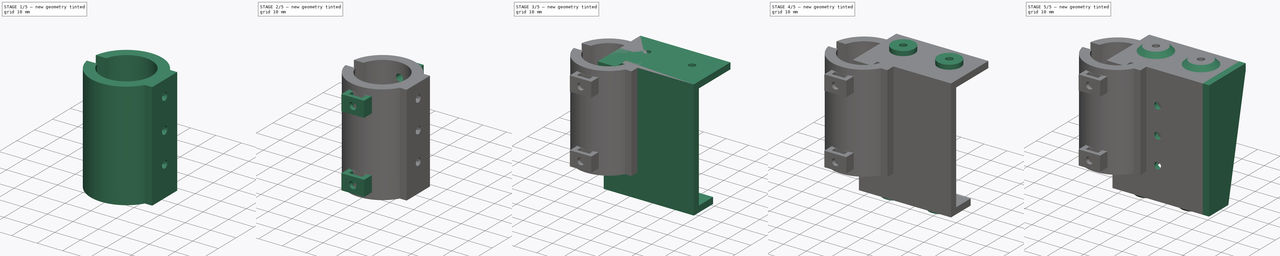
[diagram: build sequence overview — one tinted view per stage of 5, left to right]
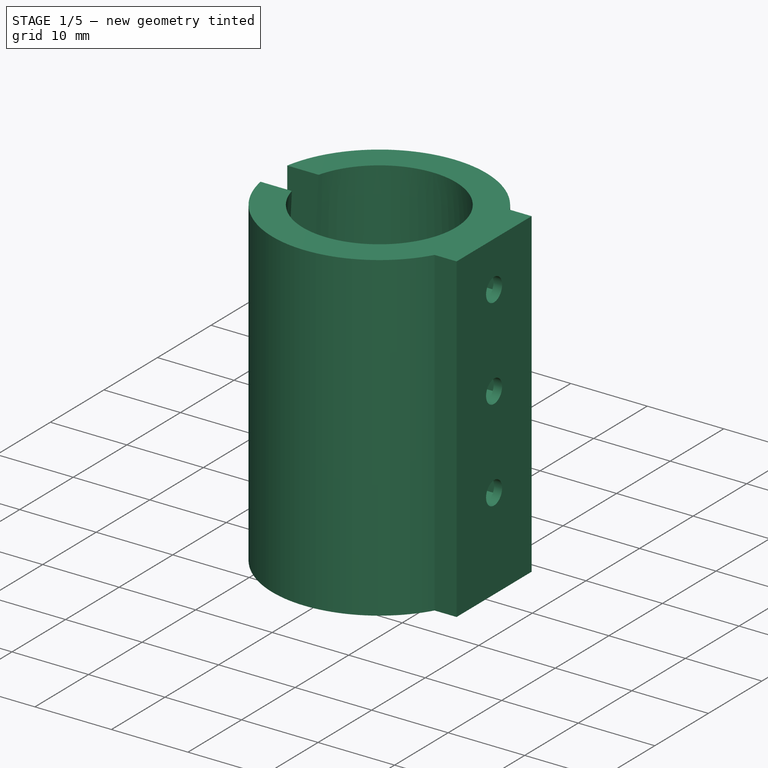
[diagram: stage 1 of 5 — iso view after this stage's code; geometry added in this stage tinted green]
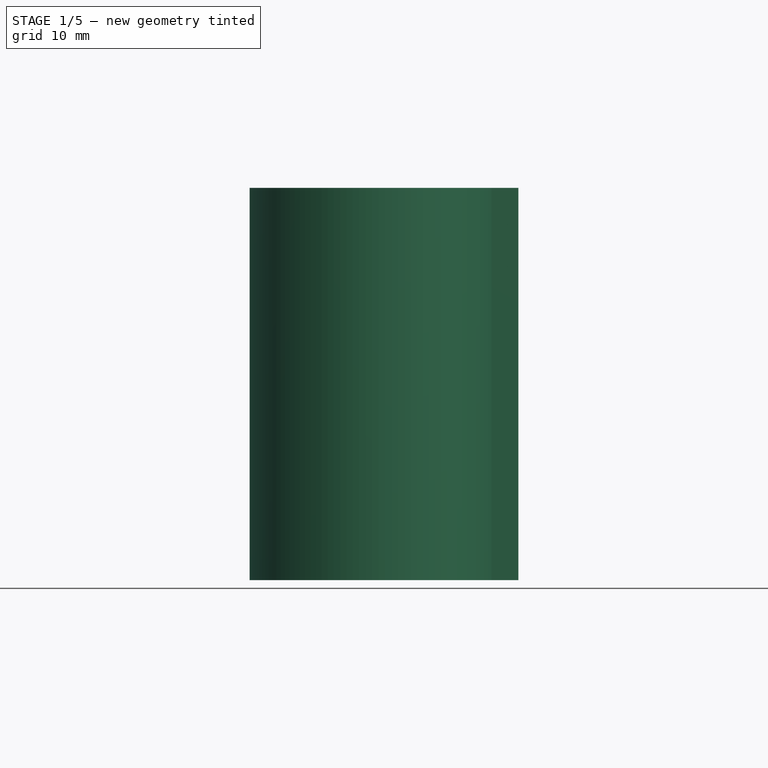
[diagram: stage 1 of 5 — front view after this stage's code; geometry added in this stage tinted green]
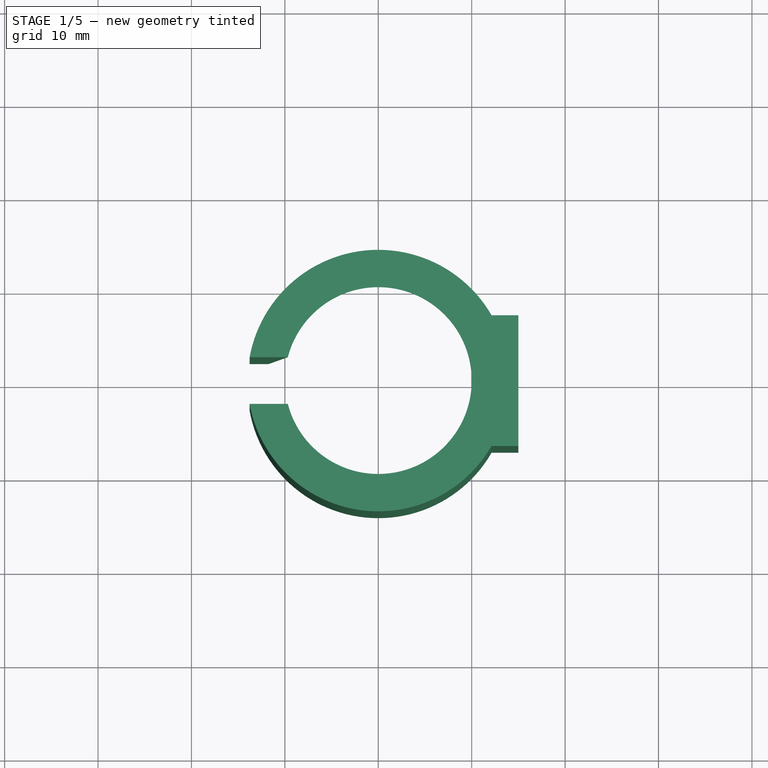
[diagram: stage 1 of 5 — top view after this stage's code; geometry added in this stage tinted green]
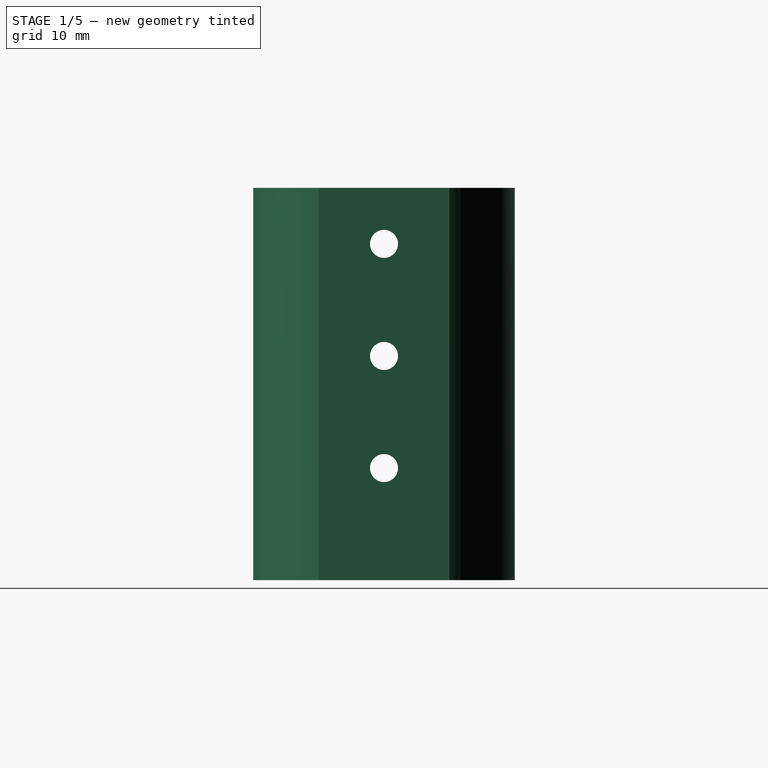
[diagram: stage 1 of 5 — right view after this stage's code; geometry added in this stage tinted green]
FCSTD DOCUMENT  (FreeCAD 0.18R4 (GitTag))
Label: mount
License: All rights reserved
LicenseURL: http://en.wikipedia.org/wiki/All_rights_reserved
objects: Sketcher::SketchObject×22, PartDesign::Pocket×12, PartDesign::Pad×9, PartDesign::Body×3, PartDesign::Plane×3, PartDesign::Chamfer×2, PartDesign::Mirrored×2, PartDesign::Revolution×1
note: 76 computed .brp shape members not serialized (recipe doc carries the construction recipe); baked Part::Feature solids carry a one-line shape summary decoded from their .brp

FEATURE [PartDesign::Body] Body
  Group = -> [Sketch,Pad,Sketch001,Pad001,Sketch002,Pad002,Sketch003,Pocket,Sketch004,Pocket001,Sketch005,Pad003,Sketch006,Pocket002,Sketch007,Pocket003,Sketch008,Pad004,Sketch009,Pocket004,Sketch010,Pocket005,Sketch011,Pocket006,Chamfer,Chamfer001,Sketch012,Pad005]
  Origin = -> Origin
  Tip = -> Pad005
FEATURE [Sketcher::SketchObject] Sketch013
  MapMode = 5
  Placement = pos=(0,0,0) rot=(0.57735,0.57735,0.57735;2.0944rad)
  Support = -> [YZ_Plane001]
  sketch-geometry (4):
    g0: LineSegment StartX=10 StartY=0 StartZ=0 EndX=14 EndY=0 EndZ=0
    g1: LineSegment StartX=14 StartY=0 StartZ=0 EndX=14 EndY=-42 EndZ=0
    g2: LineSegment StartX=14 StartY=-42 StartZ=0 EndX=12 EndY=-42 EndZ=0
    g3: LineSegment StartX=12 StartY=-42 StartZ=0 EndX=10 EndY=0 EndZ=0
  constraints (14):
    c: Coincident(g0,g1)
    c: Coincident(g1,g2)
    c: Coincident(g2,g3)
    c: Coincident(g0,g3)
    c: DistanceX(g-1,g0) = 10
    c: DistanceX(g-1,g2) = 12
    c: DistanceY(g1,g1) = 42
    c: Horizontal(g0)
    c: Horizontal(g2)
    c: Vertical(g1)
    c: PointOnObject(g0,g-1)
    c: DistanceX(g-1,g0) = 14
    c: DistanceX(g2,g2) = 2
    c: DistanceX(g0,g0) = 4
FEATURE [PartDesign::Revolution] Revolution
  Angle = 360
  Axis = (-2e-16,3e-16,1)
  Base = (0,0,0)
  Placement = pos=(0,0,0) rot=(0.57735,0.57735,0.57735;2.0944rad)
  Profile = -> Sketch013
  ReferenceAxis = -> Sketch013 [V_Axis]
  Reversed = true
FEATURE [Sketcher::SketchObject] Sketch014
  ExternalGeometry = -> [Revolution]
  MapMode = 5
  Placement = pos=(0,0,-1.7e-15) rot=(0,0,-1;1.5708rad)
  Support = -> [Revolution]
  sketch-geometry (5):
    g0: LineSegment StartX=-7 StartY=15 StartZ=0 EndX=7 EndY=15 EndZ=0
    g1: LineSegment StartX=7 StartY=15 StartZ=0 EndX=7 EndY=12 EndZ=0
    g2: LineSegment StartX=7 StartY=12 StartZ=0 EndX=-7 EndY=12 EndZ=0
    g3: LineSegment StartX=-7 StartY=12 StartZ=0 EndX=-7 EndY=15 EndZ=0
    g4: LineSegment [constr] StartX=0 StartY=14 StartZ=0 EndX=7 EndY=14 EndZ=0
  constraints (16):
    c: Coincident(g0,g1)
    c: Coincident(g1,g2)
    c: Coincident(g2,g3)
    c: Coincident(g3,g0)
    c: Horizontal(g0)
    c: Horizontal(g2)
    c: Vertical(g1)
    c: Vertical(g3)
    c: Tangent(g4,g-3)
    c: Horizontal(g4)
    c: DistanceY(g4,g0) = 1
    c: DistanceY(g1,g4) = 2
    c: DistanceX(g0,g0) = 14
    c: DistanceX(g2,g-1) = 7
    c: PointOnObject(g4,g-2)
    c: PointOnObject(g4,g1)
FEATURE [PartDesign::Pad] Pad006
  BaseFeature = -> Revolution
  Length = 42
  Length2 = 100
  Placement = pos=(0,0,0) rot=(0.57735,0.57735,0.57735;2.0944rad)
  Profile = -> Sketch014
  Reversed = true
  Type = 0
FEATURE [Sketcher::SketchObject] Sketch015
  ExternalGeometry = -> [Pad006]
  MapMode = 5
  Placement = pos=(15,-3.3e-15,1.17e-14) rot=(0.57735,0.57735,0.57735;2.0944rad)
  Support = -> [Pad006]
  sketch-geometry (3):
    g0: Circle CenterX=0 CenterY=-6 CenterZ=0 NormalX=0 NormalY=0 NormalZ=1 AngleXU=0 Radius=1.5
    g1: Circle CenterX=0 CenterY=-18 CenterZ=0 NormalX=0 NormalY=0 NormalZ=1 AngleXU=0 Radius=1.5
    g2: Circle CenterX=0 CenterY=-30 CenterZ=0 NormalX=0 NormalY=0 NormalZ=1 AngleXU=0 Radius=1.5
  constraints (10):
    c: PointOnObject(g0,g-2)
    c: PointOnObject(g1,g-2)
    c: PointOnObject(g2,g-2)
    c: Equal(g2,g1)
    c: Equal(g1,g0)
    c: DistanceY(g2,g1) = 12
    c: DistanceY(g1,g0) = 12
    c: Radius(g1) = 1.5
    c: DistanceY(g0,g-1) = 6
    c: DistanceY(g-3,g2) = 12
FEATURE [PartDesign::Pocket] Pocket007
  BaseFeature = -> Pad006
  Length = 5
  Length2 = 100
  Placement = pos=(0,0,0) rot=(0.57735,0.57735,0.57735;2.0944rad)
  Profile = -> Sketch015
  Type = 0
FEATURE [PartDesign::Plane] DatumPlane
  AttachmentOffset = pos=(0,0,-12) rot=(0,0,1;0rad)
  Length = 44.3244
  MapMode = 45
  Placement = pos=(11.92,-2.34679e-05,-21.6272) rot=(-0.577926,0.577927,0.576196;4.18706rad)
  ResizeMode = 0
  Support = -> [Pocket007]
  Width = 60.7104
FEATURE [Sketcher::SketchObject] Sketch016
  ExternalGeometry = -> [Pocket007]
  MapMode = 5
  Placement = pos=(11.92,-2.34679e-05,-21.6272) rot=(-0.577926,0.577927,0.576196;4.18706rad)
  Support = -> [DatumPlane]
  sketch-geometry (21):
    g0: LineSegment StartX=2.75 StartY=14.0393 StartZ=0 EndX=2.75 EndY=17.2148 EndZ=0
    g1: LineSegment StartX=2.75 StartY=17.2148 StartZ=0 EndX=4e-16 EndY=18.8025 EndZ=0
    g2: LineSegment StartX=4e-16 StartY=18.8025 StartZ=0 EndX=-2.75 EndY=17.2148 EndZ=0
    g3: LineSegment StartX=-2.75 StartY=17.2148 StartZ=0 EndX=-2.75 EndY=14.0393 EndZ=0
    g4: LineSegment StartX=-2.75 StartY=14.0393 StartZ=0 EndX=0 EndY=12.4516 EndZ=0
    g5: LineSegment StartX=-1e-16 StartY=12.4516 StartZ=0 EndX=2.75 EndY=14.0393 EndZ=0
    g6: Circle [constr] CenterX=0 CenterY=15.6271 CenterZ=0 NormalX=0 NormalY=0 NormalZ=1 AngleXU=0 Radius=3.17543
    g7: LineSegment StartX=2.75 StartY=2.03935 StartZ=0 EndX=2.75 EndY=5.21477 EndZ=0
    g8: LineSegment StartX=2.75 StartY=5.21477 StartZ=0 EndX=0 EndY=6.80249 EndZ=0
    g9: LineSegment StartX=-1e-16 StartY=6.80249 StartZ=0 EndX=-2.75 EndY=5.21477 EndZ=0
    g10: LineSegment StartX=-2.75 StartY=5.21477 StartZ=0 EndX=-2.75 EndY=2.03935 EndZ=0
    g11: LineSegment StartX=-2.75 StartY=2.03935 StartZ=0 EndX=0 EndY=0.451632 EndZ=0
    g12: LineSegment StartX=1e-16 StartY=0.451632 StartZ=0 EndX=2.75 EndY=2.03935 EndZ=0
    g13: Circle [constr] CenterX=0 CenterY=3.62706 CenterZ=0 NormalX=0 NormalY=0 NormalZ=1 AngleXU=0 Radius=3.17543
    g14: LineSegment StartX=2.75 StartY=-9.96065 StartZ=0 EndX=2.75 EndY=-6.78523 EndZ=0
    g15: LineSegment StartX=2.75 StartY=-6.78523 StartZ=0 EndX=4e-16 EndY=-5.19751 EndZ=0
    g16: LineSegment StartX=5e-16 StartY=-5.19751 StartZ=0 EndX=-2.75 EndY=-6.78523 EndZ=0
    g17: LineSegment StartX=-2.75 StartY=-6.78523 StartZ=0 EndX=-2.75 EndY=-9.96065 EndZ=0
    g18: LineSegment StartX=-2.75 StartY=-9.96065 StartZ=0 EndX=-5.8e-15 EndY=-11.5484 EndZ=0
    g19: LineSegment StartX=-5.8e-15 StartY=-11.5484 StartZ=0 EndX=2.75 EndY=-9.96065 EndZ=0
    g20: Circle [constr] CenterX=0 CenterY=-8.37294 CenterZ=0 NormalX=0 NormalY=0 NormalZ=1 AngleXU=0 Radius=3.17543
  constraints (52):
    c: Coincident(g0,g1)
    c: Coincident(g1,g2)
    c: Coincident(g2,g3)
    c: Coincident(g3,g4)
    c: Coincident(g4,g5)
    c: Coincident(g5,g0)
    c: Equal(g0, g1-g5) x5
    c: PointOnObject(g0,g6)
    c: PointOnObject(g1,g6)
    c: PointOnObject(g2,g6)
    c: PointOnObject(g3,g6)
    c: PointOnObject(g4,g6)
    c: PointOnObject(g5,g6)
    c: Coincident(g7,g8)
    c: Coincident(g8,g9)
    c: Coincident(g9,g10)
    c: Coincident(g10,g11)
    c: Coincident(g11,g12)
    c: Coincident(g12,g7)
    c: Equal(g7, g8-g12) x5
    c: PointOnObject(g7,g13)
    c: PointOnObject(g8,g13)
    c: PointOnObject(g9,g13)
    c: PointOnObject(g10,g13)
    c: PointOnObject(g11,g13)
    c: PointOnObject(g12,g13)
    c: Coincident(g14,g15)
    c: Coincident(g15,g16)
    c: Coincident(g16,g17)
    c: Coincident(g17,g18)
    c: Coincident(g18,g19)
    c: Coincident(g19,g14)
    c: Equal(g14, g15-g19) x5
    c: PointOnObject(g14,g20)
    c: PointOnObject(g15,g20)
    c: PointOnObject(g16,g20)
    c: PointOnObject(g17,g20)
    c: PointOnObject(g18,g20)
    c: PointOnObject(g19,g20)
    c: Vertical(g17)
    c: Vertical(g10)
    c: Vertical(g3)
    c: DistanceY(g13,g6) = 12
    c: DistanceY(g20,g13) = 12
    c: Equal(g20,g13)
    c: Equal(g13,g6)
    c: DistanceX(g2,g0) = 5.5
    c: PointOnObject(g6,g-2)
    c: PointOnObject(g13,g-2)
    c: PointOnObject(g20,g-2)
    c: DistanceY(g6,g-3) = 5.99981
    c: DistanceY(g-4,g20) = 12
FEATURE [PartDesign::Pocket] Pocket008
  BaseFeature = -> Pocket007
  Length = 2
  Length2 = 3
  Placement = pos=(0,0,0) rot=(0.57735,0.57735,0.57735;2.0944rad)
  Profile = -> Sketch016
  Type = 4
FEATURE [PartDesign::Body] Body002
  Group = -> [Sketch017,Pad007]
  Origin = -> Origin002
  Tip = -> Pad007
FEATURE [Sketcher::SketchObject] Sketch018
  MapMode = 5
  Placement = pos=(0,0,-1.7e-15) rot=(0,0,-1;1.5708rad)
  Support = -> [Pocket008]
  sketch-geometry (4):
    g0: LineSegment StartX=-2.5 StartY=0 StartZ=0 EndX=2.5 EndY=0 EndZ=0
    g1: LineSegment StartX=2.5 StartY=0 StartZ=0 EndX=2.5 EndY=-15 EndZ=0
    g2: LineSegment StartX=2.5 StartY=-15 StartZ=0 EndX=-2.5 EndY=-15 EndZ=0
    g3: LineSegment StartX=-2.5 StartY=-15 StartZ=0 EndX=-2.5 EndY=0 EndZ=0
  constraints (11):
    c: Coincident(g0,g1)
    c: Coincident(g1,g2)
    c: Coincident(g2,g3)
    c: Coincident(g3,g0)
    c: Horizontal(g0)
    c: Horizontal(g2)
    c: Vertical(g1)
    c: Vertical(g3)
    c: DistanceX(g2,g2) = 5
    c: DistanceY(g1,g1) = 15
    c: Symmetric(g0,g0,g-1)
FEATURE [PartDesign::Pocket] Pocket009
  BaseFeature = -> Pocket008
  Length = 43
  Length2 = 100
  Placement = pos=(0,0,0) rot=(0.57735,0.57735,0.57735;2.0944rad)
  Profile = -> Sketch018
  Type = 0
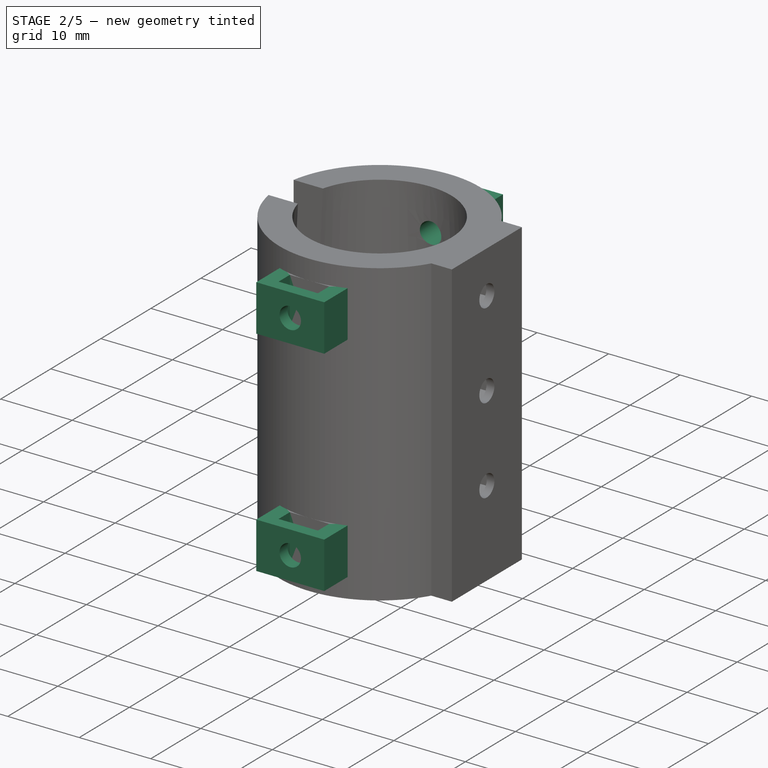
[diagram: stage 2 of 5 — iso view after this stage's code; geometry added in this stage tinted green]
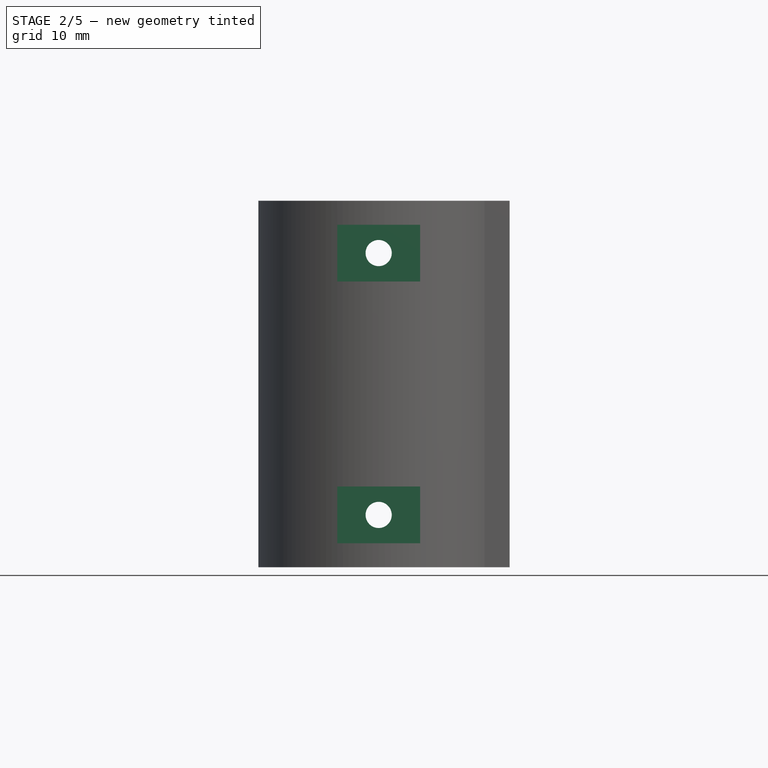
[diagram: stage 2 of 5 — front view after this stage's code; geometry added in this stage tinted green]
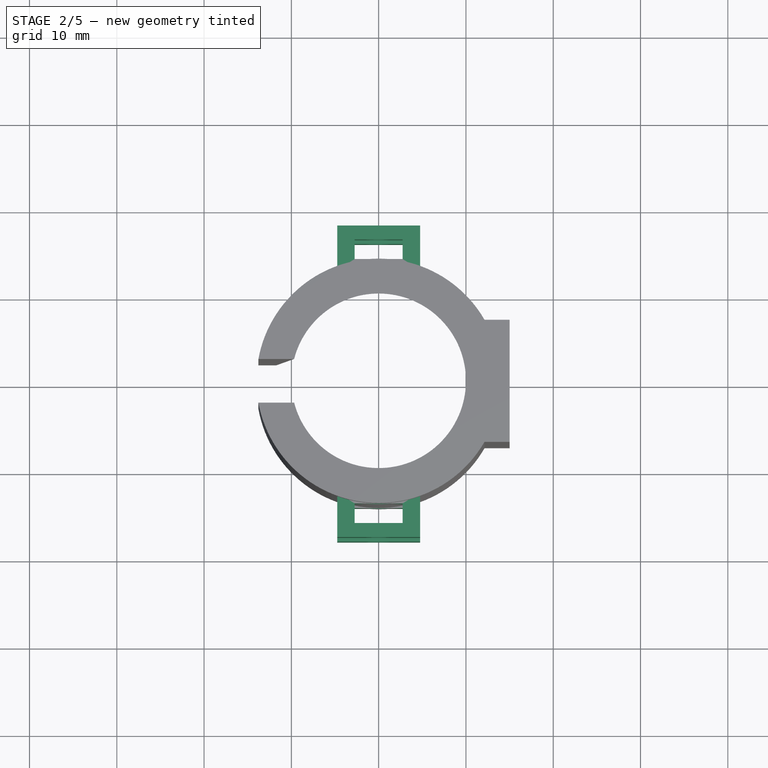
[diagram: stage 2 of 5 — top view after this stage's code; geometry added in this stage tinted green]
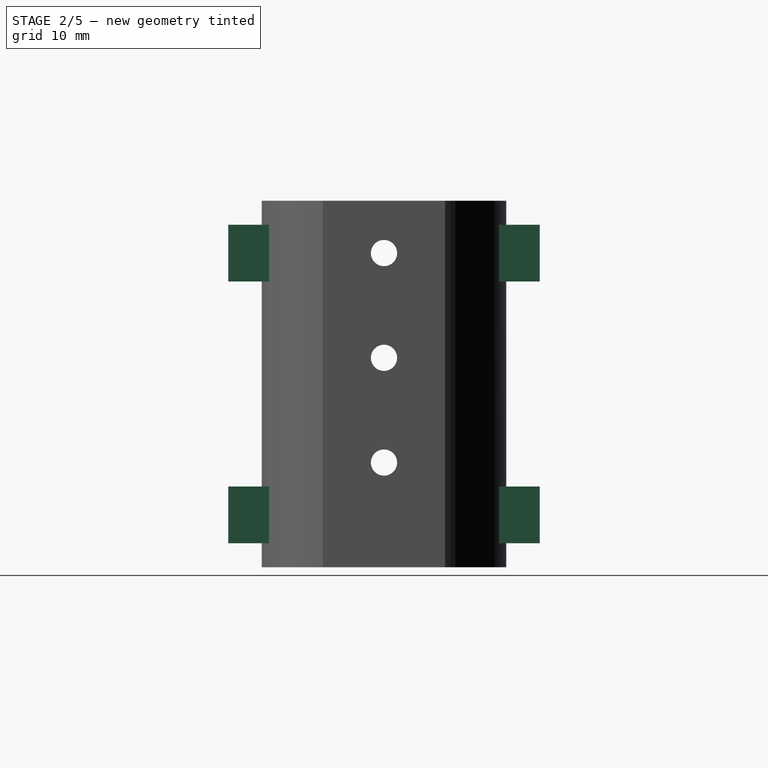
[diagram: stage 2 of 5 — right view after this stage's code; geometry added in this stage tinted green]
FEATURE [PartDesign::Plane] DatumPlane001
  AttachmentOffset = pos=(-12,0,0) rot=(0,1,0;1.5708rad)
  Length = 36.5114
  MapMode = 5
  Placement = pos=(15,12,1.3e-14) rot=(-1,0,0;4.71239rad)
  ResizeMode = 0
  Support = -> [Pocket009]
  Width = 59.7364
FEATURE [Sketcher::SketchObject] Sketch019
  ExternalGeometry = -> [Pocket009]
  MapMode = 5
  Placement = pos=(15,12,1.3e-14) rot=(1,0,0;1.5708rad)
  Support = -> [DatumPlane001]
  sketch-geometry (2):
    g0: Circle CenterX=-15 CenterY=-6 CenterZ=0 NormalX=0 NormalY=0 NormalZ=1 AngleXU=0 Radius=1.5
    g1: Circle CenterX=-15 CenterY=-36 CenterZ=0 NormalX=0 NormalY=0 NormalZ=1 AngleXU=0 Radius=1.5
  constraints (6):
    c: Equal(g1,g0)
    c: PointOnObject(g0,g-3)
    c: PointOnObject(g1,g-3)
    c: DistanceY(g-3,g1) = 6
    c: Radius(g1) = 1.5
    c: DistanceY(g0,g-3) = 6
FEATURE [PartDesign::Plane] DatumPlane002
  AttachmentOffset = pos=(0,0,2) rot=(0,0,1;0rad)
  Length = 36.5114
  MapMode = 5
  Placement = pos=(15,14,1.35e-14) rot=(0,0.707107,0.707107;3.14159rad)
  ResizeMode = 0
  Support = -> [DatumPlane001]
  Width = 59.7364
FEATURE [Sketcher::SketchObject] Sketch020
  ExternalGeometry = -> [Pocket009]
  MapMode = 5
  Placement = pos=(15,14,1.35e-14) rot=(0,0.707107,0.707107;3.14159rad)
  Support = -> [DatumPlane002]
  sketch-geometry (10):
    g0: LineSegment StartX=10.25 StartY=-2.75 StartZ=0 EndX=19.75 EndY=-2.75 EndZ=0
    g1: LineSegment StartX=19.75 StartY=-2.75 StartZ=0 EndX=19.75 EndY=-9.25 EndZ=0
    g2: LineSegment StartX=19.75 StartY=-9.25 StartZ=0 EndX=10.25 EndY=-9.25 EndZ=0
    g3: LineSegment StartX=10.25 StartY=-9.25 StartZ=0 EndX=10.25 EndY=-2.75 EndZ=0
    g4: LineSegment StartX=10.25 StartY=-32.75 StartZ=0 EndX=19.75 EndY=-32.75 EndZ=0
    g5: LineSegment StartX=19.75 StartY=-32.75 StartZ=0 EndX=19.75 EndY=-39.25 EndZ=0
    g6: LineSegment StartX=19.75 StartY=-39.25 StartZ=0 EndX=10.25 EndY=-39.25 EndZ=0
    g7: LineSegment StartX=10.25 StartY=-39.25 StartZ=0 EndX=10.25 EndY=-32.75 EndZ=0
    g8: GeomPoint X=15 Y=-36 Z=0
    g9: GeomPoint X=15 Y=-6 Z=0
  constraints (28):
    c: Coincident(g0,g1)
    c: Coincident(g1,g2)
    c: Coincident(g2,g3)
    c: Coincident(g3,g0)
    c: Horizontal(g0)
    c: Horizontal(g2)
    c: Vertical(g1)
    c: Vertical(g3)
    c: Coincident(g4,g5)
    c: Coincident(g5,g6)
    c: Coincident(g6,g7)
    c: Coincident(g7,g4)
    c: Horizontal(g4)
    c: Horizontal(g6)
    c: Vertical(g5)
    c: Vertical(g7)
    c: Equal(g4,g2)
    c: Equal(g5,g1)
    c: DistanceY(g5,g5) = 6.5
    c: DistanceX(g6,g6) = 9.5
    c: DistanceY(g8,g4) = 3.25
    c: DistanceX(g4,g8) = 4.75
    c: PointOnObject(g8,g-3)
    c: DistanceY(g-3,g8) = 6
    c: DistanceY(g1,g9) = 3.25
    c: DistanceX(g9,g1) = 4.75
    c: PointOnObject(g9,g-3)
    c: DistanceY(g9,g-3) = 6
FEATURE [PartDesign::Pad] Pad008
  BaseFeature = -> Pocket009
  Length = 3.85
  Length2 = 1
  Placement = pos=(0,0,0) rot=(0.57735,0.57735,0.57735;2.0944rad)
  Profile = -> Sketch020
  Type = 4
FEATURE [PartDesign::Mirrored] Mirrored
  BaseFeature = -> Pad008
  MirrorPlane = -> XZ_Plane001
  Originals = -> [Pad008]
  Placement = pos=(0,0,0) rot=(0.57735,0.57735,0.57735;2.0944rad)
FEATURE [PartDesign::Pocket] Pocket010
  BaseFeature = -> Mirrored
  Length = 8
  Length2 = 100
  Placement = pos=(0,0,0) rot=(0.57735,0.57735,0.57735;2.0944rad)
  Profile = -> Sketch019
  Type = 4
FEATURE [Sketcher::SketchObject] Sketch021
  ExternalGeometry = -> [Pocket010]
  MapMode = 5
  Placement = pos=(3.3e-14,6.5e-15,-39.25) rot=(0.707107,0.707107,0;3.14159rad)
  Support = -> [Pocket010]
  sketch-geometry (4):
    g0: LineSegment StartX=-16.25 StartY=2.75 StartZ=0 EndX=-14 EndY=2.75 EndZ=0
    g1: LineSegment StartX=-14 StartY=2.75 StartZ=0 EndX=-14 EndY=-2.75 EndZ=0
    g2: LineSegment StartX=-14 StartY=-2.75 StartZ=0 EndX=-16.25 EndY=-2.75 EndZ=0
    g3: LineSegment StartX=-16.25 StartY=-2.75 StartZ=0 EndX=-16.25 EndY=2.75 EndZ=0
  constraints (13):
    c: Coincident(g0,g1)
    c: Coincident(g1,g2)
    c: Coincident(g2,g3)
    c: Coincident(g3,g0)
    c: Horizontal(g0)
    c: Horizontal(g2)
    c: Vertical(g1)
    c: Vertical(g3)
    c: DistanceX(g2,g2) = 2.25
    c: DistanceY(g3,g3) = 5.5
    c: DistanceY(g-3,g2) = 2
    c: DistanceX(g-3,g2) = 1.6
    c: DistanceY(g0,g-4) = 2
FEATURE [PartDesign::Pocket] Pocket011
  BaseFeature = -> Pocket010
  Length = 42
  Length2 = 100
  Placement = pos=(0,0,0) rot=(0.57735,0.57735,0.57735;2.0944rad)
  Profile = -> Sketch021
  Type = 0
FEATURE [PartDesign::Mirrored] Mirrored001
  BaseFeature = -> Pocket011
  MirrorPlane = -> XZ_Plane001
  Originals = -> [Pocket011]
  Placement = pos=(0,0,0) rot=(0.57735,0.57735,0.57735;2.0944rad)
FEATURE [PartDesign::Body] Body001
  Group = -> [Sketch013,Revolution,Sketch014,Pad006,Sketch015,Pocket007,DatumPlane,Sketch016,Pocket008,Sketch018,Pocket009,DatumPlane001,Sketch019,DatumPlane002,Sketch020,Pad008,Mirrored,Pocket010,Sketch021,Pocket011,Mirrored001]
  Origin = -> Origin001
  Tip = -> Mirrored001
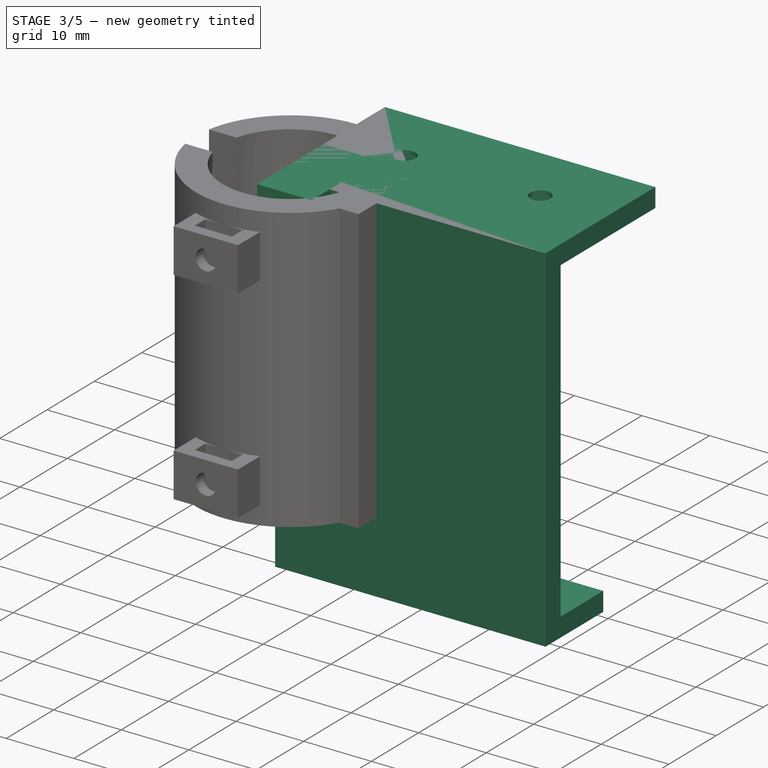
[diagram: stage 3 of 5 — iso view after this stage's code; geometry added in this stage tinted green]
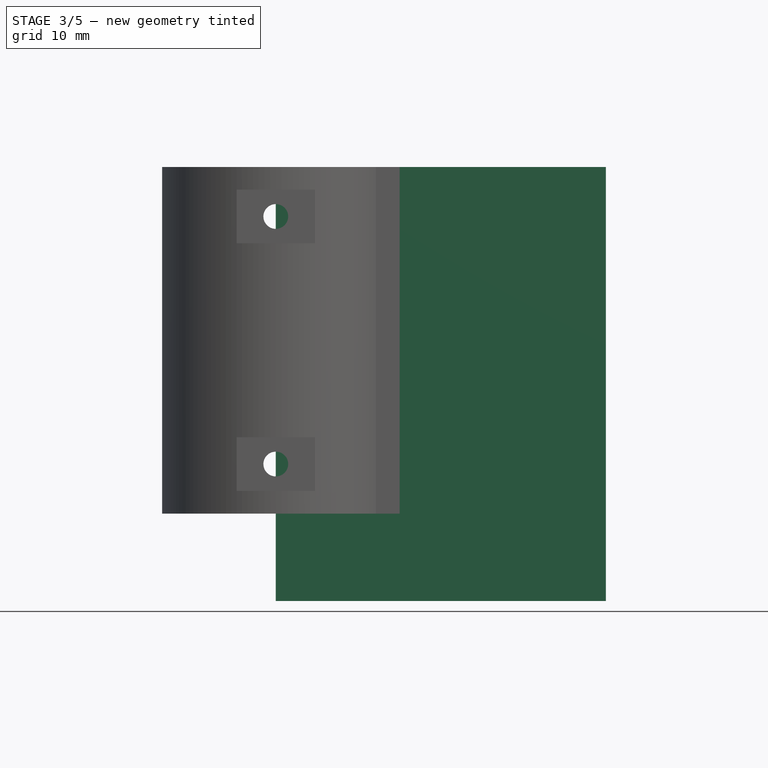
[diagram: stage 3 of 5 — front view after this stage's code; geometry added in this stage tinted green]
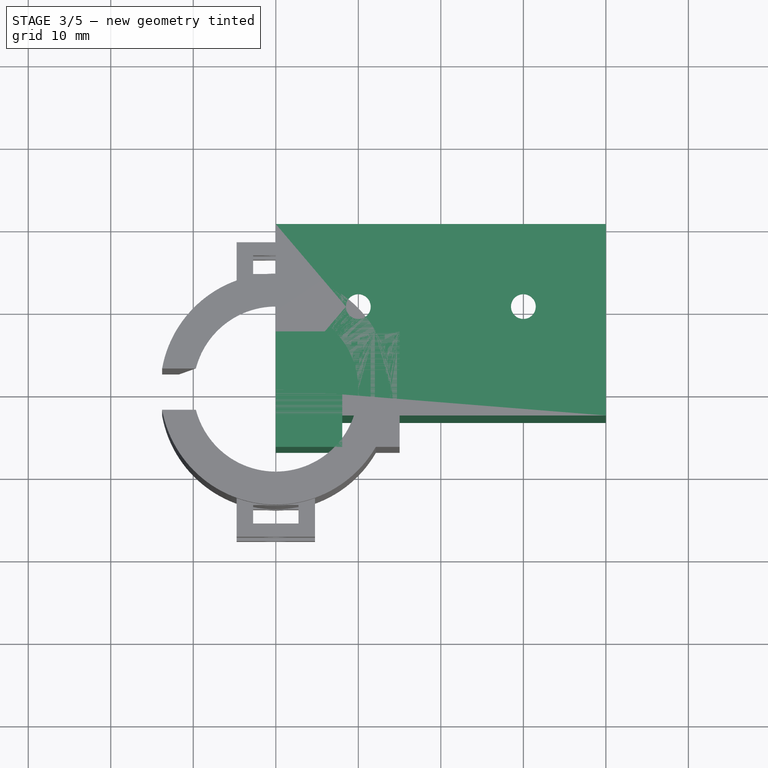
[diagram: stage 3 of 5 — top view after this stage's code; geometry added in this stage tinted green]
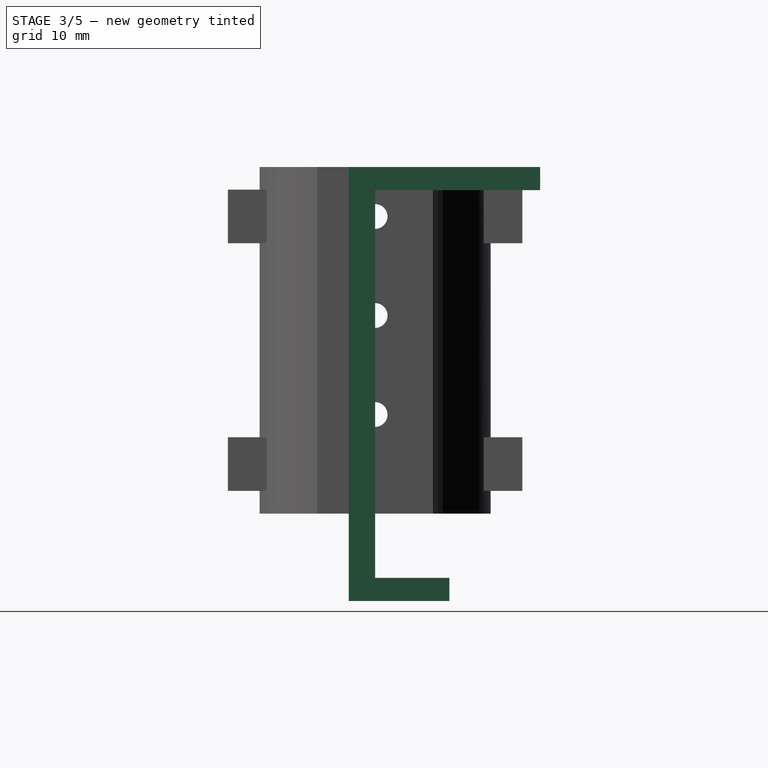
[diagram: stage 3 of 5 — right view after this stage's code; geometry added in this stage tinted green]
FEATURE [Sketcher::SketchObject] Sketch
  MapMode = 5
  Placement = pos=(0,0,0) rot=(1,0,0;1.5708rad)
  Support = -> [XZ_Plane]
  sketch-geometry (4):
    g0: LineSegment StartX=0 StartY=0 StartZ=0 EndX=40 EndY=0 EndZ=0
    g1: LineSegment StartX=40 StartY=0 StartZ=0 EndX=40 EndY=-52.6 EndZ=0
    g2: LineSegment StartX=40 StartY=-52.6 StartZ=0 EndX=0 EndY=-52.6 EndZ=0
    g3: LineSegment StartX=0 StartY=-52.6 StartZ=0 EndX=0 EndY=0 EndZ=0
  constraints (11):
    c: Coincident(g0,g1)
    c: Coincident(g1,g2)
    c: Coincident(g2,g3)
    c: Coincident(g3,g0)
    c: Horizontal(g0)
    c: Horizontal(g2)
    c: Vertical(g1)
    c: Vertical(g3)
    c: DistanceY(g1,g1) = 52.6
    c: DistanceX(g0,g0) = 40
    c: Coincident(g0,g-1)
FEATURE [PartDesign::Pad] Pad
  Length = 3.2
  Length2 = 100
  Placement = pos=(0,0,0) rot=(1,0,0;1.5708rad)
  Profile = -> Sketch
  Type = 0
FEATURE [Sketcher::SketchObject] Sketch001
  ExternalGeometry = -> [Pad]
  MapMode = 5
  Placement = pos=(0,1e-16,0) rot=(-1,0,0;1.5708rad)
  Support = -> [Pad]
  sketch-geometry (4):
    g0: LineSegment StartX=0 StartY=52.6 StartZ=0 EndX=40 EndY=52.6 EndZ=0
    g1: LineSegment StartX=40 StartY=52.6 StartZ=0 EndX=40 EndY=49.8 EndZ=0
    g2: LineSegment StartX=40 StartY=49.8 StartZ=0 EndX=0 EndY=49.8 EndZ=0
    g3: LineSegment StartX=0 StartY=49.8 StartZ=0 EndX=0 EndY=52.6 EndZ=0
  constraints (10):
    c: Coincident(g0,g1)
    c: Coincident(g1,g2)
    c: Coincident(g2,g3)
    c: Coincident(g3,g0)
    c: Horizontal(g2)
    c: Vertical(g1)
    c: Vertical(g3)
    c: Coincident(g0,g-3)
    c: Coincident(g0,g-4)
    c: DistanceY(g1,g1) = 2.8
FEATURE [PartDesign::Pad] Pad001
  BaseFeature = -> Pad
  Length = 9
  Length2 = 100
  Placement = pos=(0,0,0) rot=(1,0,0;1.5708rad)
  Profile = -> Sketch001
  Type = 0
FEATURE [Sketcher::SketchObject] Sketch002
  ExternalGeometry = -> [Pad001]
  MapMode = 5
  Placement = pos=(0,1e-16,0) rot=(-1,0,0;1.5708rad)
  Support = -> [Pad001]
  sketch-geometry (4):
    g0: LineSegment StartX=0 StartY=0 StartZ=0 EndX=40 EndY=1e-16 EndZ=0
    g1: LineSegment StartX=40 StartY=1e-16 StartZ=0 EndX=40 EndY=2.8 EndZ=0
    g2: LineSegment StartX=40 StartY=2.8 StartZ=0 EndX=0 EndY=2.8 EndZ=0
    g3: LineSegment StartX=0 StartY=2.8 StartZ=0 EndX=0 EndY=0 EndZ=0
  constraints (10):
    c: Coincident(g0,g1)
    c: Coincident(g1,g2)
    c: Coincident(g2,g3)
    c: Coincident(g3,g0)
    c: Horizontal(g2)
    c: Vertical(g1)
    c: Vertical(g3)
    c: DistanceY(g1,g1) = 2.8
    c: Coincident(g0,g-3)
    c: Coincident(g-1,g0)
FEATURE [PartDesign::Pad] Pad002
  BaseFeature = -> Pad001
  Length = 20
  Length2 = 100
  Placement = pos=(0,0,0) rot=(1,0,0;1.5708rad)
  Profile = -> Sketch002
  Type = 0
FEATURE [Sketcher::SketchObject] Sketch003
  ExternalGeometry = -> [Pad002]
  MapMode = 5
  Placement = pos=(0,-6e-16,-2.8) rot=(1,0,0;3.14159rad)
  Support = -> [Pad002]
  sketch-geometry (3):
    g0: Circle CenterX=10 CenterY=-10 CenterZ=0 NormalX=0 NormalY=0 NormalZ=1 AngleXU=0 Radius=1.5
    g1: Circle CenterX=30 CenterY=-10 CenterZ=0 NormalX=0 NormalY=0 NormalZ=1 AngleXU=0 Radius=1.5
    g2: LineSegment [constr] StartX=10 StartY=-10 StartZ=0 EndX=30 EndY=-10 EndZ=0
  constraints (8):
    c: Equal(g0,g1)
    c: DistanceX(g-3,g0) = 10
    c: DistanceY(g-3,g0) = 10
    c: Coincident(g2,g0)
    c: Coincident(g2,g1)
    c: DistanceX(g2,g2) = 20
    c: Horizontal(g2)
    c: Radius(g1) = 1.5
FEATURE [PartDesign::Pocket] Pocket
  BaseFeature = -> Pad002
  Length = 5
  Length2 = 100
  Placement = pos=(0,0,0) rot=(1,0,0;1.5708rad)
  Profile = -> Sketch003
  Type = 0
FEATURE [Sketcher::SketchObject] Sketch004
  ExternalGeometry = -> [Pocket]
  MapMode = 5
  Placement = pos=(0,-6e-16,-2.8) rot=(1,0,0;3.14159rad)
  Support = -> [Pocket]
  sketch-geometry (14):
    g0: LineSegment StartX=12.75 StartY=-11.5877 StartZ=0 EndX=12.75 EndY=-8.41229 EndZ=0
    g1: LineSegment StartX=12.75 StartY=-8.41229 StartZ=0 EndX=10 EndY=-6.82457 EndZ=0
    g2: LineSegment StartX=10 StartY=-6.82457 StartZ=0 EndX=7.25 EndY=-8.41229 EndZ=0
    g3: LineSegment StartX=7.25 StartY=-8.41229 StartZ=0 EndX=7.25 EndY=-11.5877 EndZ=0
    g4: LineSegment StartX=7.25 StartY=-11.5877 StartZ=0 EndX=10 EndY=-13.1754 EndZ=0
    g5: LineSegment StartX=10 StartY=-13.1754 StartZ=0 EndX=12.75 EndY=-11.5877 EndZ=0
    g6: Circle [constr] CenterX=10 CenterY=-10 CenterZ=0 NormalX=0 NormalY=0 NormalZ=1 AngleXU=0 Radius=3.17543
    g7: LineSegment StartX=30 StartY=-13.1754 StartZ=0 EndX=32.75 EndY=-11.5877 EndZ=0
    g8: LineSegment StartX=32.75 StartY=-11.5877 StartZ=0 EndX=32.75 EndY=-8.41229 EndZ=0
    g9: LineSegment StartX=32.75 StartY=-8.41229 StartZ=0 EndX=30 EndY=-6.82457 EndZ=0
    g10: LineSegment StartX=30 StartY=-6.82457 StartZ=0 EndX=27.25 EndY=-8.41229 EndZ=0
    g11: LineSegment StartX=27.25 StartY=-8.41229 StartZ=0 EndX=27.25 EndY=-11.5877 EndZ=0
    g12: LineSegment StartX=27.25 StartY=-11.5877 StartZ=0 EndX=30 EndY=-13.1754 EndZ=0
    g13: Circle [constr] CenterX=30 CenterY=-10 CenterZ=0 NormalX=0 NormalY=0 NormalZ=1 AngleXU=0 Radius=3.17543
  constraints (32):
    c: Coincident(g0,g1)
    c: Coincident(g1,g2)
    c: Coincident(g2,g3)
    c: Coincident(g3,g4)
    c: Coincident(g4,g5)
    c: Coincident(g5,g0)
    c: Equal(g0, g1-g5) x5
    c: PointOnObject(g0,g6)
    c: PointOnObject(g1,g6)
    c: PointOnObject(g2,g6)
    c: PointOnObject(g3,g6)
    c: PointOnObject(g4,g6)
    c: PointOnObject(g5,g6)
    c: Coincident(g7,g8)
    c: Coincident(g8,g9)
    c: Coincident(g9,g10)
    c: Coincident(g10,g11)
    c: Coincident(g11,g12)
    c: Coincident(g12,g7)
    c: Equal(g7, g8-g12) x5
    c: PointOnObject(g7,g13)
    c: PointOnObject(g8,g13)
    c: PointOnObject(g9,g13)
    c: PointOnObject(g10,g13)
    c: PointOnObject(g11,g13)
    c: PointOnObject(g12,g13)
    c: Coincident(g13,g-4)
    c: Coincident(g-3,g6)
    c: Vertical(g0)
    c: Vertical(g11)
    c: Equal(g6,g13)
    c: DistanceX(g3,g0) = 5.5
FEATURE [PartDesign::Pocket] Pocket001
  BaseFeature = -> Pocket
  Length = 2.25
  Length2 = 100
  Placement = pos=(0,0,0) rot=(1,0,0;1.5708rad)
  Profile = -> Sketch004
  Type = 0
FEATURE [Sketcher::SketchObject] Sketch017
  MapMode = 5
  Placement = pos=(0,0,0) rot=(0.57735,0.57735,0.57735;2.0944rad)
  Support = -> [YZ_Plane002]
  sketch-geometry (7):
    g0: LineSegment StartX=-7 StartY=0 StartZ=0 EndX=7 EndY=0 EndZ=0
    g1: LineSegment StartX=7 StartY=0 StartZ=0 EndX=7 EndY=-42 EndZ=0
    g2: LineSegment StartX=7 StartY=-42 StartZ=0 EndX=-7 EndY=-42 EndZ=0
    g3: LineSegment StartX=-7 StartY=-42 StartZ=0 EndX=-7 EndY=0 EndZ=0
    g4: Circle CenterX=0 CenterY=-6 CenterZ=0 NormalX=0 NormalY=0 NormalZ=1 AngleXU=0 Radius=1.5
    g5: Circle CenterX=0 CenterY=-18 CenterZ=0 NormalX=0 NormalY=0 NormalZ=1 AngleXU=0 Radius=1.5
    g6: Circle CenterX=0 CenterY=-30 CenterZ=0 NormalX=0 NormalY=0 NormalZ=1 AngleXU=0 Radius=1.5
  constraints (21):
    c: Coincident(g0,g1)
    c: Coincident(g1,g2)
    c: Coincident(g2,g3)
    c: Coincident(g3,g0)
    c: Horizontal(g0)
    c: Horizontal(g2)
    c: Vertical(g1)
    c: Vertical(g3)
    c: DistanceY(g1,g1) = 42
    c: DistanceX(g0,g0) = 14
    c: Symmetric(g0,g0,g-1)
    c: PointOnObject(g4,g-2)
    c: PointOnObject(g5,g-2)
    c: PointOnObject(g6,g-2)
    c: Equal(g4,g5)
    c: Equal(g6,g5)
    c: Radius(g5) = 1.5
    c: DistanceY(g5,g4) = 12
    c: DistanceY(g6,g5) = 12
    c: DistanceY(g2,g6) = 12
    c: DistanceY(g4,g0) = 6
FEATURE [PartDesign::Pad] Pad007
  Length = 8.05
  Length2 = 100
  Placement = pos=(0,0,0) rot=(0.57735,0.57735,0.57735;2.0944rad)
  Profile = -> Sketch017
  Type = 0
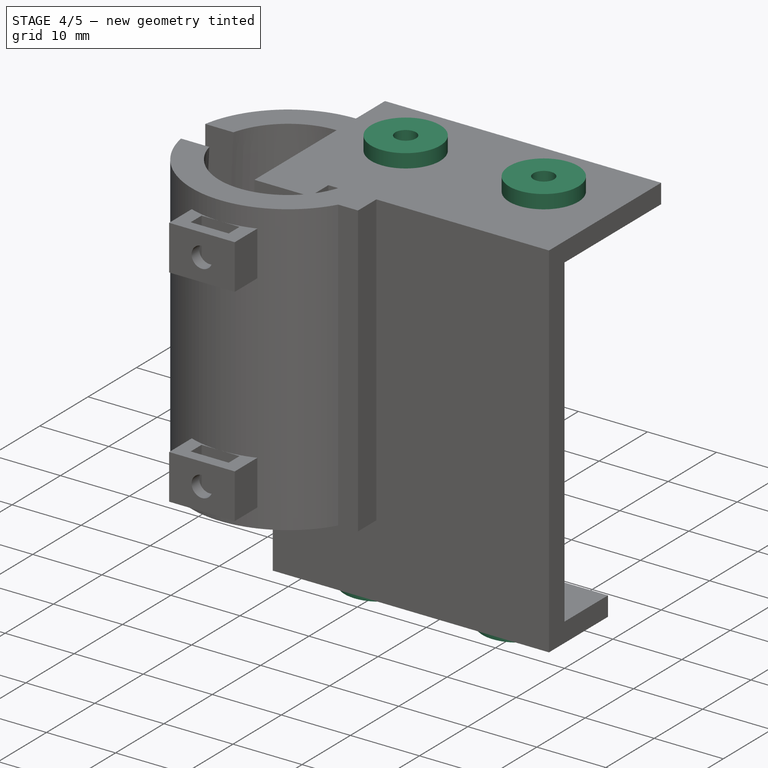
[diagram: stage 4 of 5 — iso view after this stage's code; geometry added in this stage tinted green]
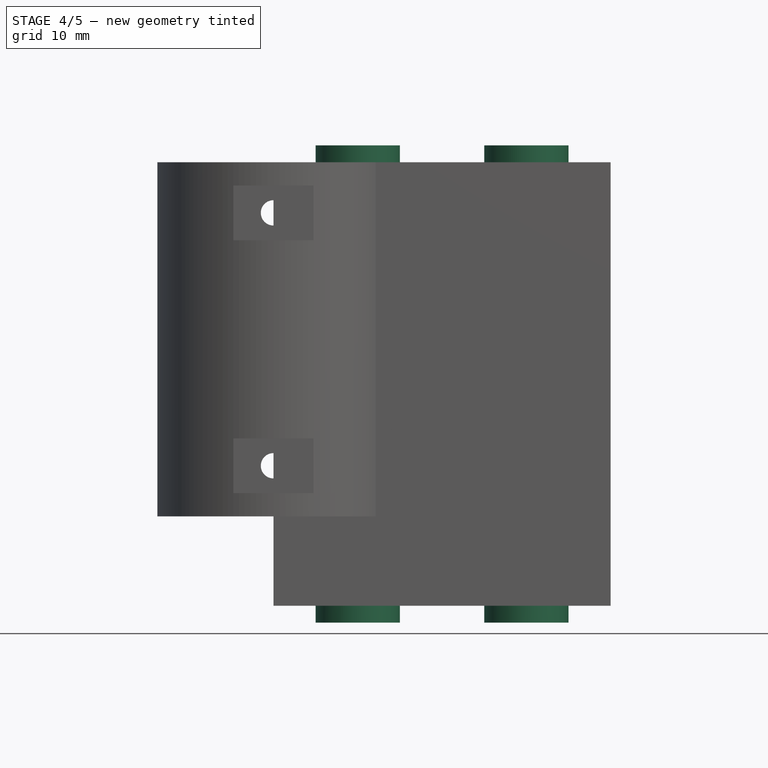
[diagram: stage 4 of 5 — front view after this stage's code; geometry added in this stage tinted green]
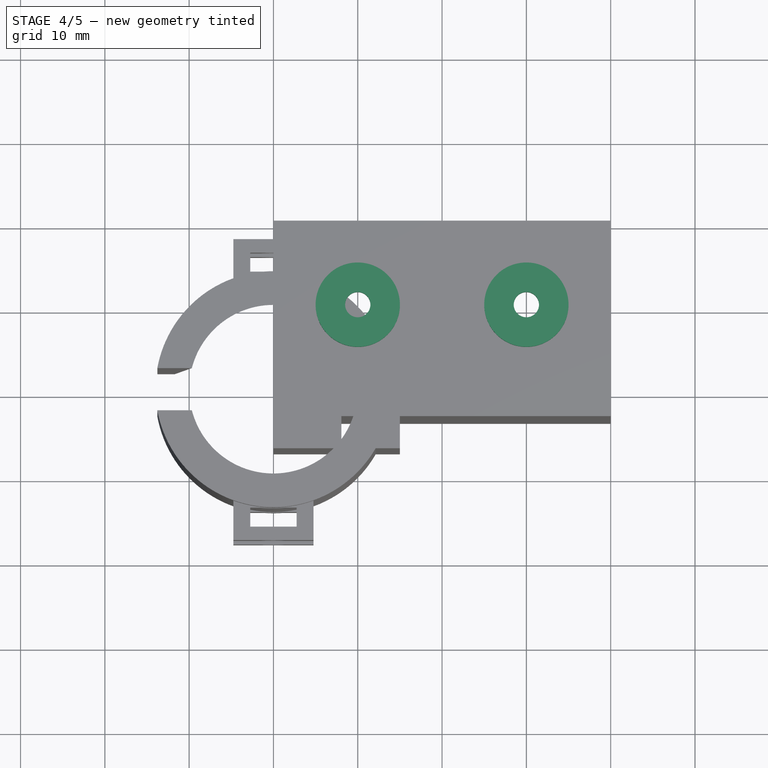
[diagram: stage 4 of 5 — top view after this stage's code; geometry added in this stage tinted green]
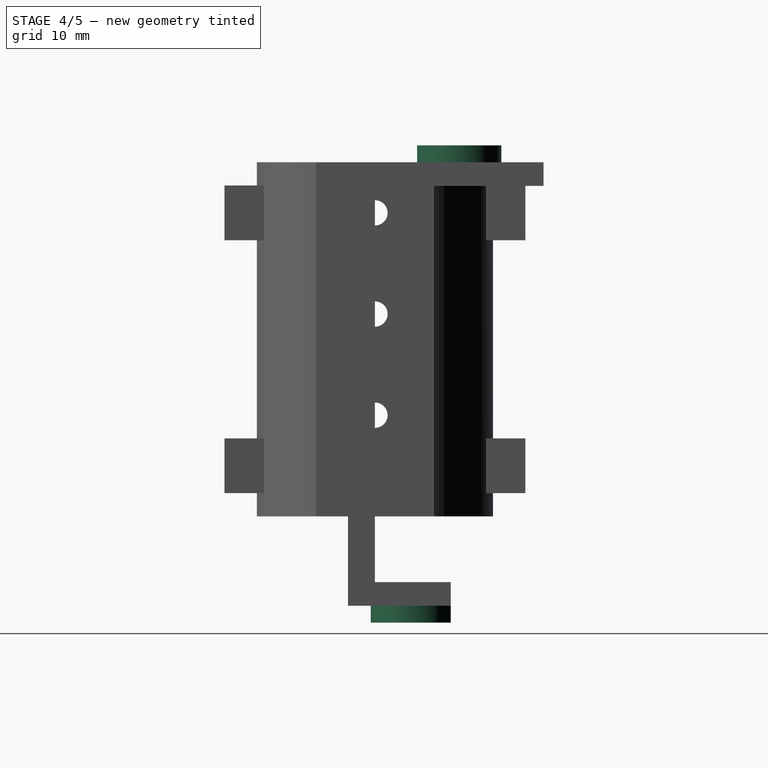
[diagram: stage 4 of 5 — right view after this stage's code; geometry added in this stage tinted green]
FEATURE [Sketcher::SketchObject] Sketch005
  ExternalGeometry = -> [Pocket001]
  MapMode = 5
  Placement = pos=(0,0,0) rot=(0,0,1;3.14159rad)
  Support = -> [Pocket001]
  sketch-geometry (4):
    g0: Circle CenterX=-30 CenterY=-10 CenterZ=0 NormalX=0 NormalY=0 NormalZ=1 AngleXU=0 Radius=5
    g1: Circle CenterX=-10 CenterY=-10 CenterZ=0 NormalX=0 NormalY=0 NormalZ=1 AngleXU=0 Radius=5
    g2: Circle CenterX=-30 CenterY=-10 CenterZ=0 NormalX=0 NormalY=0 NormalZ=1 AngleXU=0 Radius=1.5
    g3: Circle CenterX=-10 CenterY=-10 CenterZ=0 NormalX=0 NormalY=0 NormalZ=1 AngleXU=0 Radius=1.5
  constraints (8):
    c: Coincident(g2,g0)
    c: Coincident(g0,g-3)
    c: Coincident(g1,g-4)
    c: Coincident(g1,g3)
    c: Equal(g3,g-4)
    c: Equal(g-3,g2)
    c: Equal(g0,g1)
    c: Radius(g1) = 5
FEATURE [PartDesign::Pad] Pad003
  BaseFeature = -> Pocket001
  Length = 2
  Length2 = 100
  Placement = pos=(0,0,0) rot=(1,0,0;1.5708rad)
  Profile = -> Sketch005
  Type = 0
FEATURE [Sketcher::SketchObject] Sketch006
  ExternalGeometry = -> [Pad003]
  MapMode = 5
  Placement = pos=(0,-1.17e-14,-52.6) rot=(1,0,0;3.14159rad)
  Support = -> [Pad003]
  sketch-geometry (3):
    g0: Circle CenterX=10 CenterY=-4.5 CenterZ=0 NormalX=0 NormalY=0 NormalZ=1 AngleXU=0 Radius=1.5
    g1: Circle CenterX=30 CenterY=-4.5 CenterZ=0 NormalX=0 NormalY=0 NormalZ=1 AngleXU=0 Radius=1.5
    g2: LineSegment [constr] StartX=10 StartY=-4.5 StartZ=0 EndX=30 EndY=-4.5 EndZ=0
  constraints (8):
    c: Equal(g0,g1)
    c: Coincident(g2,g0)
    c: Coincident(g2,g1)
    c: DistanceX(g-3,g0) = 10
    c: DistanceY(g-3,g0) = 4.5
    c: Horizontal(g2)
    c: DistanceX(g2,g2) = 20
    c: Radius(g0) = 1.5
FEATURE [PartDesign::Pocket] Pocket002
  BaseFeature = -> Pad003
  Length = 5
  Length2 = 100
  Placement = pos=(0,0,0) rot=(1,0,0;1.5708rad)
  Profile = -> Sketch006
  Type = 0
FEATURE [Sketcher::SketchObject] Sketch007
  ExternalGeometry = -> [Pocket002]
  MapMode = 5
  Placement = pos=(0,-1.11e-14,-49.8) rot=(0,0,1;3.14159rad)
  Support = -> [Pocket002]
  sketch-geometry (14):
    g0: LineSegment StartX=-27.25 StartY=-6.08771 StartZ=0 EndX=-27.25 EndY=-2.91229 EndZ=0
    g1: LineSegment StartX=-27.25 StartY=-2.91229 StartZ=0 EndX=-30 EndY=-1.32457 EndZ=0
    g2: LineSegment StartX=-30 StartY=-1.32457 StartZ=0 EndX=-32.75 EndY=-2.91229 EndZ=0
    g3: LineSegment StartX=-32.75 StartY=-2.91229 StartZ=0 EndX=-32.75 EndY=-6.08771 EndZ=0
    g4: LineSegment StartX=-32.75 StartY=-6.08771 StartZ=0 EndX=-30 EndY=-7.67543 EndZ=0
    g5: LineSegment StartX=-30 StartY=-7.67543 StartZ=0 EndX=-27.25 EndY=-6.08771 EndZ=0
    g6: Circle [constr] CenterX=-30 CenterY=-4.5 CenterZ=0 NormalX=0 NormalY=0 NormalZ=1 AngleXU=0 Radius=3.17543
    g7: LineSegment StartX=-10 StartY=-7.67543 StartZ=0 EndX=-7.25 EndY=-6.08771 EndZ=0
    g8: LineSegment StartX=-7.25 StartY=-6.08771 StartZ=0 EndX=-7.25 EndY=-2.91229 EndZ=0
    g9: LineSegment StartX=-7.25 StartY=-2.91229 StartZ=0 EndX=-10 EndY=-1.32457 EndZ=0
    g10: LineSegment StartX=-10 StartY=-1.32457 StartZ=0 EndX=-12.75 EndY=-2.91229 EndZ=0
    g11: LineSegment StartX=-12.75 StartY=-2.91229 StartZ=0 EndX=-12.75 EndY=-6.08771 EndZ=0
    g12: LineSegment StartX=-12.75 StartY=-6.08771 StartZ=0 EndX=-10 EndY=-7.67543 EndZ=0
    g13: Circle [constr] CenterX=-10 CenterY=-4.5 CenterZ=0 NormalX=0 NormalY=0 NormalZ=1 AngleXU=0 Radius=3.17543
  constraints (32):
    c: Coincident(g0,g1)
    c: Coincident(g1,g2)
    c: Coincident(g2,g3)
    c: Coincident(g3,g4)
    c: Coincident(g4,g5)
    c: Coincident(g5,g0)
    c: Equal(g0, g1-g5) x5
    c: PointOnObject(g0,g6)
    c: PointOnObject(g1,g6)
    c: PointOnObject(g2,g6)
    c: PointOnObject(g3,g6)
    c: PointOnObject(g4,g6)
    c: PointOnObject(g5,g6)
    c: Coincident(g7,g8)
    c: Coincident(g8,g9)
    c: Coincident(g9,g10)
    c: Coincident(g10,g11)
    c: Coincident(g11,g12)
    c: Coincident(g12,g7)
    c: Equal(g7, g8-g12) x5
    c: PointOnObject(g7,g13)
    c: PointOnObject(g8,g13)
    c: PointOnObject(g9,g13)
    c: PointOnObject(g10,g13)
    c: PointOnObject(g11,g13)
    c: PointOnObject(g12,g13)
    c: Equal(g6,g13)
    c: Coincident(g-3,g6)
    c: Coincident(g13,g-4)
    c: Vertical(g0)
    c: Vertical(g11)
    c: DistanceX(g3,g0) = 5.5
FEATURE [PartDesign::Pocket] Pocket003
  BaseFeature = -> Pocket002
  Length = 2.25
  Length2 = 100
  Placement = pos=(0,0,0) rot=(1,0,0;1.5708rad)
  Profile = -> Sketch007
  Type = 0
FEATURE [Sketcher::SketchObject] Sketch008
  ExternalGeometry = -> [Pocket003]
  MapMode = 5
  Placement = pos=(0,-1.17e-14,-52.6) rot=(1,0,0;3.14159rad)
  Support = -> [Pocket003]
  sketch-geometry (4):
    g0: Circle CenterX=10 CenterY=-4.5 CenterZ=0 NormalX=0 NormalY=0 NormalZ=1 AngleXU=0 Radius=5
    g1: Circle CenterX=10 CenterY=-4.5 CenterZ=0 NormalX=0 NormalY=0 NormalZ=1 AngleXU=0 Radius=1.5
    g2: Circle CenterX=30 CenterY=-4.5 CenterZ=0 NormalX=0 NormalY=0 NormalZ=1 AngleXU=0 Radius=5
    g3: Circle CenterX=30 CenterY=-4.5 CenterZ=0 NormalX=0 NormalY=0 NormalZ=1 AngleXU=0 Radius=1.5
  constraints (8):
    c: Coincident(g3,g2)
    c: Coincident(g2,g-4)
    c: Coincident(g-3,g1)
    c: Coincident(g1,g0)
    c: Equal(g-3,g1)
    c: Equal(g-4,g3)
    c: Equal(g0,g2)
    c: Radius(g0) = 5
FEATURE [PartDesign::Pad] Pad004
  BaseFeature = -> Pocket003
  Length = 2
  Length2 = 100
  Placement = pos=(0,0,0) rot=(1,0,0;1.5708rad)
  Profile = -> Sketch008
  Type = 0
FEATURE [Sketcher::SketchObject] Sketch009
  ExternalGeometry = -> [Pad004]
  MapMode = 5
  Placement = pos=(0,-1.17e-14,-52.6) rot=(0,0,1;3.14159rad)
  Support = -> [Pad004]
  sketch-geometry (4):
    g0: LineSegment StartX=-40 StartY=-9 StartZ=0 EndX=2.13e-14 EndY=-9 EndZ=0
    g1: LineSegment StartX=2.13e-14 StartY=-9 StartZ=0 EndX=2.13e-14 EndY=-12 EndZ=0
    g2: LineSegment StartX=2.13e-14 StartY=-12 StartZ=0 EndX=-40 EndY=-12 EndZ=0
    g3: LineSegment StartX=-40 StartY=-12 StartZ=0 EndX=-40 EndY=-9 EndZ=0
  constraints (10):
    c: Coincident(g0,g1)
    c: Coincident(g1,g2)
    c: Coincident(g2,g3)
    c: Coincident(g3,g0)
    c: Horizontal(g2)
    c: Vertical(g1)
    c: Vertical(g3)
    c: Coincident(g0,g-3)
    c: Coincident(g0,g-3)
    c: DistanceY(g1,g1) = 3
FEATURE [PartDesign::Pocket] Pocket004
  BaseFeature = -> Pad004
  Length = 5
  Length2 = 100
  Placement = pos=(0,0,0) rot=(1,0,0;1.5708rad)
  Profile = -> Sketch009
  Type = 0
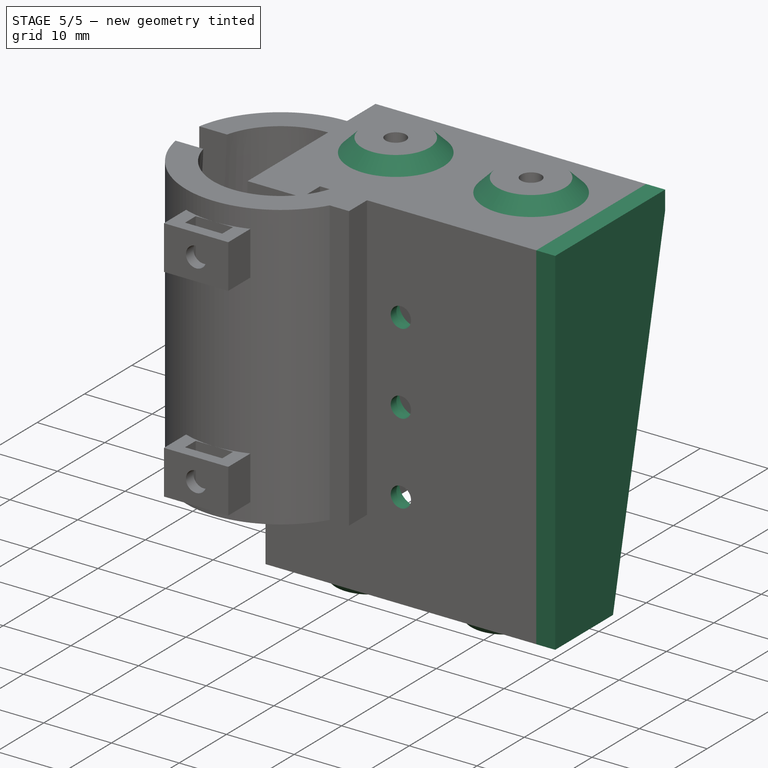
[diagram: stage 5 of 5 — iso view after this stage's code; geometry added in this stage tinted green]
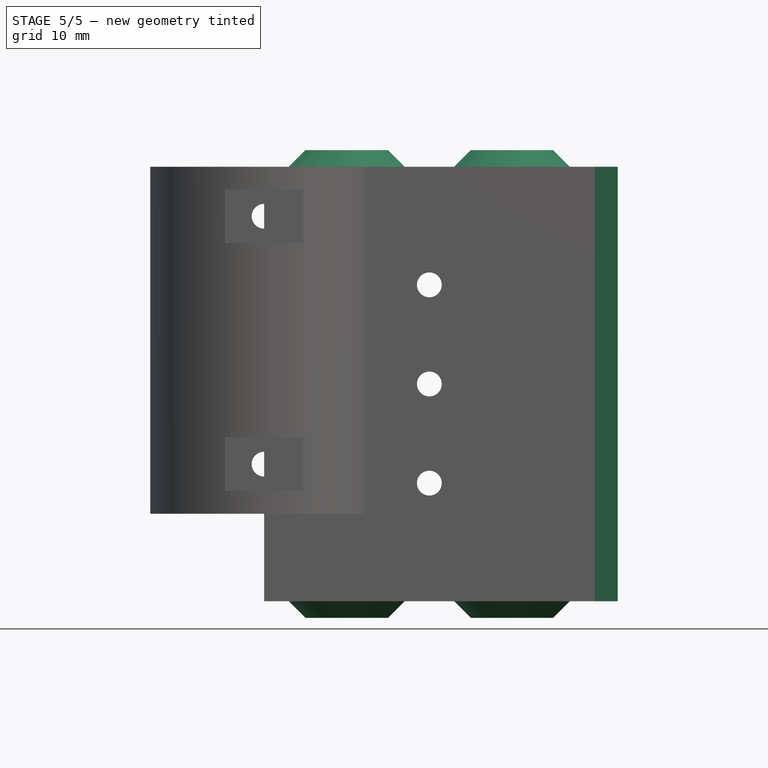
[diagram: stage 5 of 5 — front view after this stage's code; geometry added in this stage tinted green]
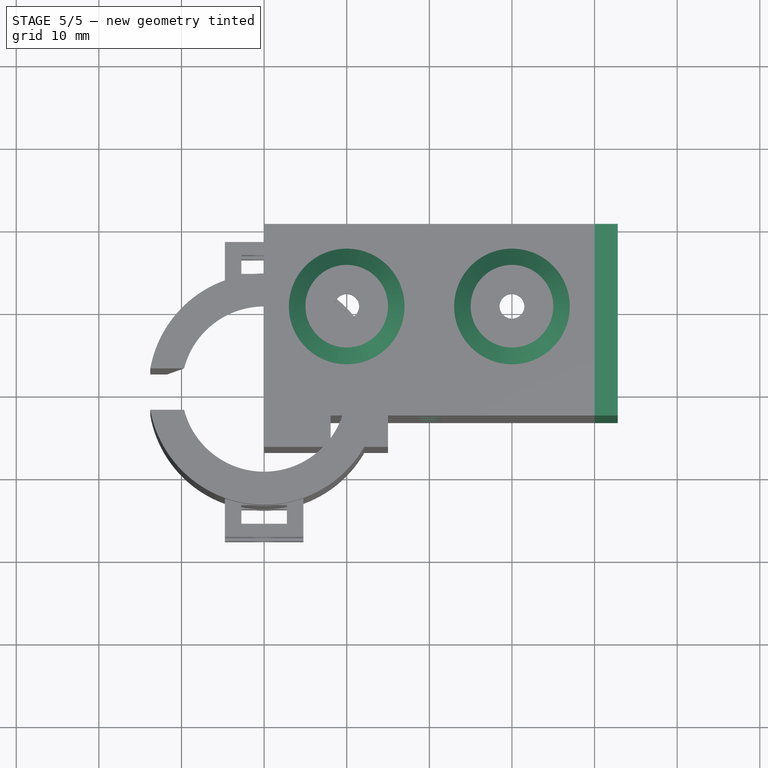
[diagram: stage 5 of 5 — top view after this stage's code; geometry added in this stage tinted green]
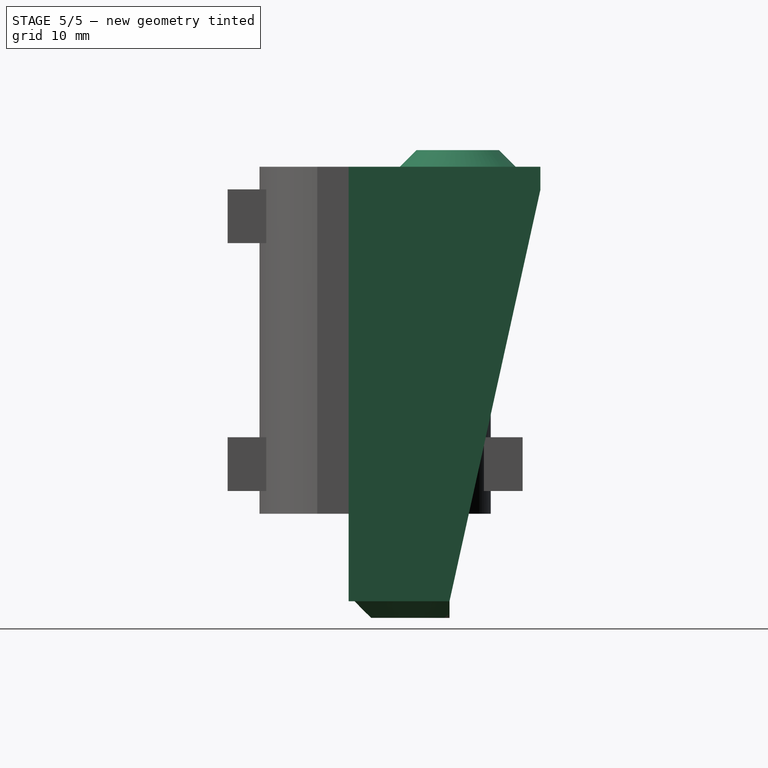
[diagram: stage 5 of 5 — right view after this stage's code; geometry added in this stage tinted green]
FEATURE [Sketcher::SketchObject] Sketch010
  ExternalGeometry = -> [Pocket004]
  MapMode = 5
  Placement = pos=(0,1e-16,0) rot=(-1,0,0;1.5708rad)
  Support = -> [Pocket004]
  sketch-geometry (4):
    g0: Circle CenterX=20 CenterY=38.3 CenterZ=0 NormalX=0 NormalY=0 NormalZ=1 AngleXU=0 Radius=1.5
    g1: Circle CenterX=20 CenterY=14.3 CenterZ=0 NormalX=0 NormalY=0 NormalZ=1 AngleXU=0 Radius=1.5
    g2: LineSegment [constr] StartX=20 StartY=38.3 StartZ=0 EndX=20 EndY=14.3 EndZ=0
    g3: Circle CenterX=20 CenterY=26.3 CenterZ=0 NormalX=0 NormalY=0 NormalZ=1 AngleXU=0 Radius=1.5
  constraints (12):
    c: Coincident(g2,g0)
    c: Coincident(g1,g2)
    c: Vertical(g2)
    c: Equal(g0,g1)
    c: Radius(g1) = 1.5
    c: DistanceY(g2,g2) = 24
    c: DistanceX(g-3,g0) = 20
    c: DistanceY(g0,g-3) = 11.5
    c: DistanceY(g-4,g1) = 11.5
    c: Equal(g1,g3)
    c: PointOnObject(g3,g2)
    c: DistanceY(g1,g3) = 12
FEATURE [PartDesign::Pocket] Pocket005
  BaseFeature = -> Pocket004
  Length = 5
  Length2 = 100
  Placement = pos=(0,0,0) rot=(1,0,0;1.5708rad)
  Profile = -> Sketch010
  Type = 0
FEATURE [Sketcher::SketchObject] Sketch011
  ExternalGeometry = -> [Pocket005]
  MapMode = 5
  Placement = pos=(0,1e-16,0) rot=(-1,0,0;1.5708rad)
  Support = -> [Pocket005]
  sketch-geometry (3):
    g0: Circle CenterX=20 CenterY=38.3 CenterZ=0 NormalX=0 NormalY=0 NormalZ=1 AngleXU=0 Radius=2.5
    g1: Circle CenterX=20 CenterY=26.3 CenterZ=0 NormalX=0 NormalY=0 NormalZ=1 AngleXU=0 Radius=2.5
    g2: Circle CenterX=20 CenterY=14.3 CenterZ=0 NormalX=0 NormalY=0 NormalZ=1 AngleXU=0 Radius=2.5
  constraints (6):
    c: Equal(g2,g1)
    c: Equal(g1,g0)
    c: Radius(g0) = 2.5
    c: Coincident(g0,g-3)
    c: Coincident(g1,g-4)
    c: Coincident(g2,g-5)
FEATURE [PartDesign::Pocket] Pocket006
  BaseFeature = -> Pocket005
  Length = 2
  Length2 = 100
  Placement = pos=(0,0,0) rot=(1,0,0;1.5708rad)
  Profile = -> Sketch011
  Type = 0
FEATURE [PartDesign::Chamfer] Chamfer
  Base = -> Pocket006 [Edge19,Edge18]
  BaseFeature = -> Pocket006
  Placement = pos=(0,0,0) rot=(1,0,0;1.5708rad)
  Size = 1.999
FEATURE [PartDesign::Chamfer] Chamfer001
  Base = -> Chamfer [Edge130,Edge82,Edge131,Edge129,Edge122,Edge123,Edge80,Edge124]
  BaseFeature = -> Chamfer
  Placement = pos=(0,0,0) rot=(1,0,0;1.5708rad)
  Size = 1.99
FEATURE [Sketcher::SketchObject] Sketch012
  ExternalGeometry = -> [Chamfer001]
  MapMode = 5
  Placement = pos=(40,0,0) rot=(0.707107,0,0.707107;3.14159rad)
  Support = -> [Chamfer001]
  sketch-geometry (5):
    g0: LineSegment StartX=-52.6 StartY=3.2 StartZ=0 EndX=-52.6 EndY=-9 EndZ=0
    g1: LineSegment StartX=-52.6 StartY=-9 StartZ=0 EndX=-2.8 EndY=-20 EndZ=0
    g2: LineSegment StartX=-2.8 StartY=-20 StartZ=0 EndX=-2.71e-14 EndY=-20 EndZ=0
    g3: LineSegment StartX=-2.71e-14 StartY=-20 StartZ=0 EndX=1e-15 EndY=3.2 EndZ=0
    g4: LineSegment StartX=1e-15 StartY=3.2 StartZ=0 EndX=-52.6 EndY=3.2 EndZ=0
  constraints (10):
    c: Coincident(g0,g1)
    c: Coincident(g1,g2)
    c: Coincident(g2,g3)
    c: Coincident(g3,g4)
    c: Coincident(g0,g4)
    c: Coincident(g0,g-4)
    c: Coincident(g-4,g3)
    c: Coincident(g-5,g2)
    c: Coincident(g1,g-5)
    c: Coincident(g0,g-3)
FEATURE [PartDesign::Pad] Pad005
  BaseFeature = -> Chamfer001
  Length = 2.8
  Length2 = 100
  Placement = pos=(0,0,0) rot=(1,0,0;1.5708rad)
  Profile = -> Sketch012
  Type = 0
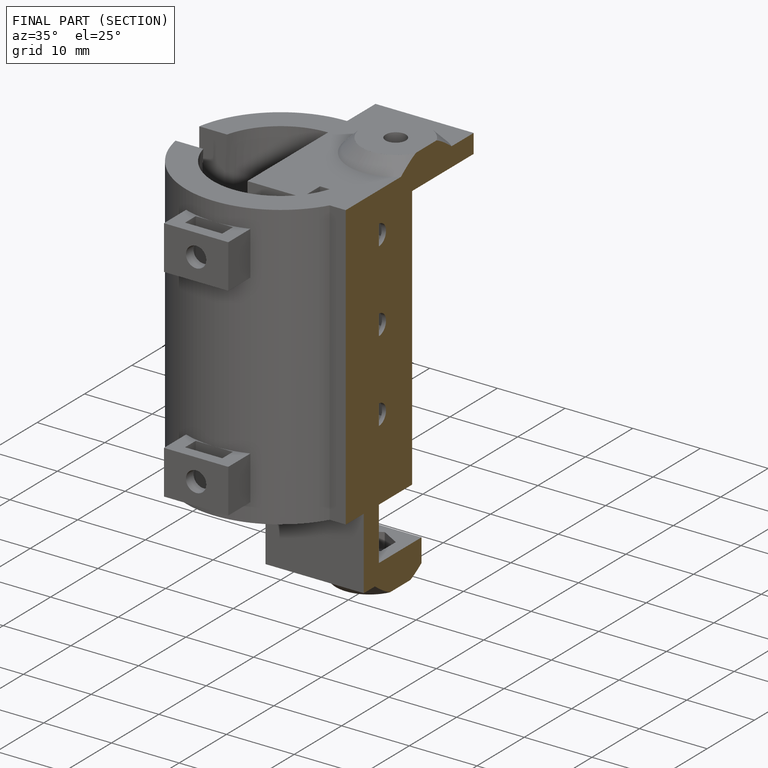
[diagram: finished part — half-section view (interior)]
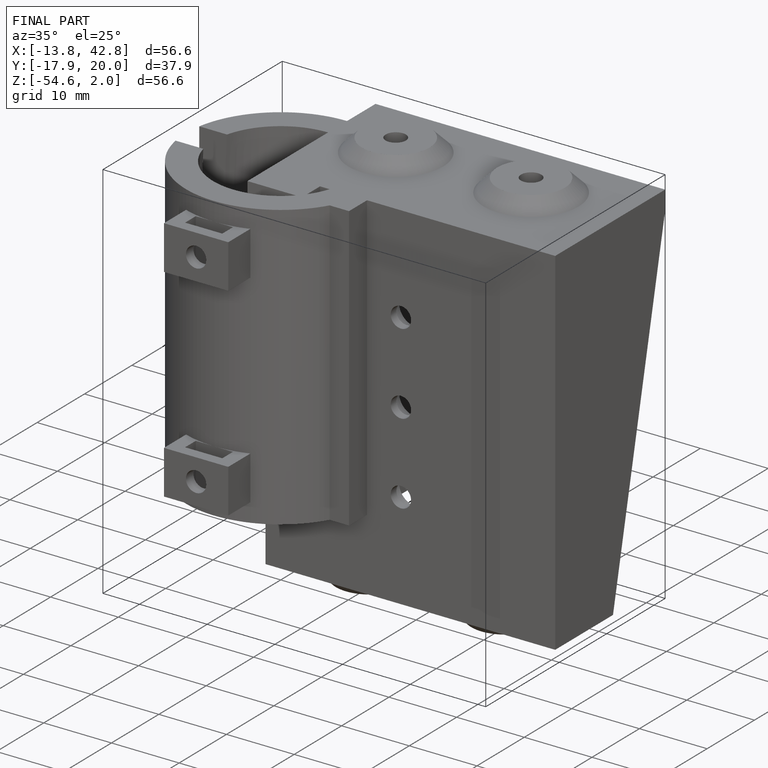
[diagram: finished part — iso view with bounding-box wireframe]
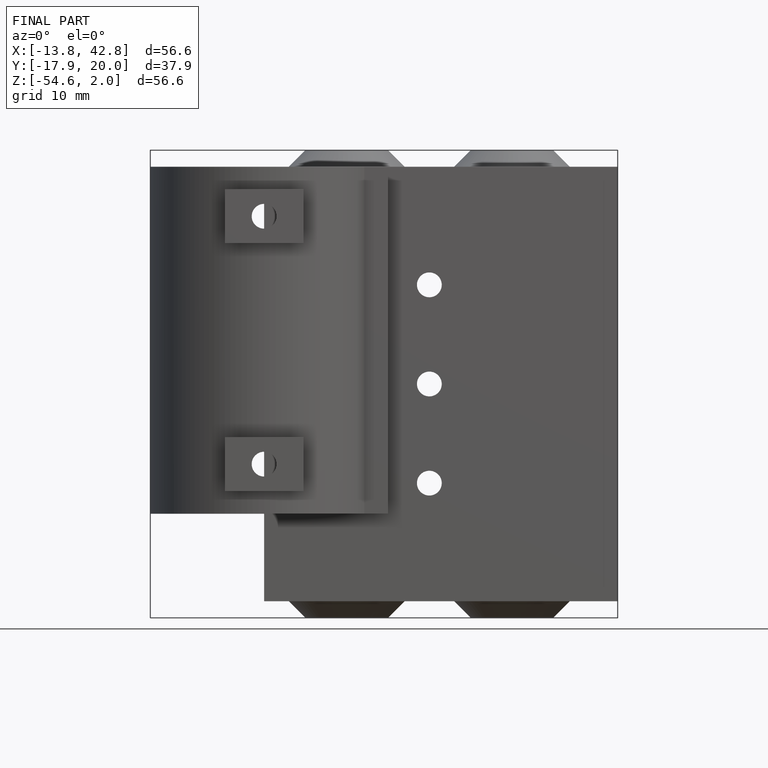
[diagram: finished part — front view with bounding-box wireframe]
